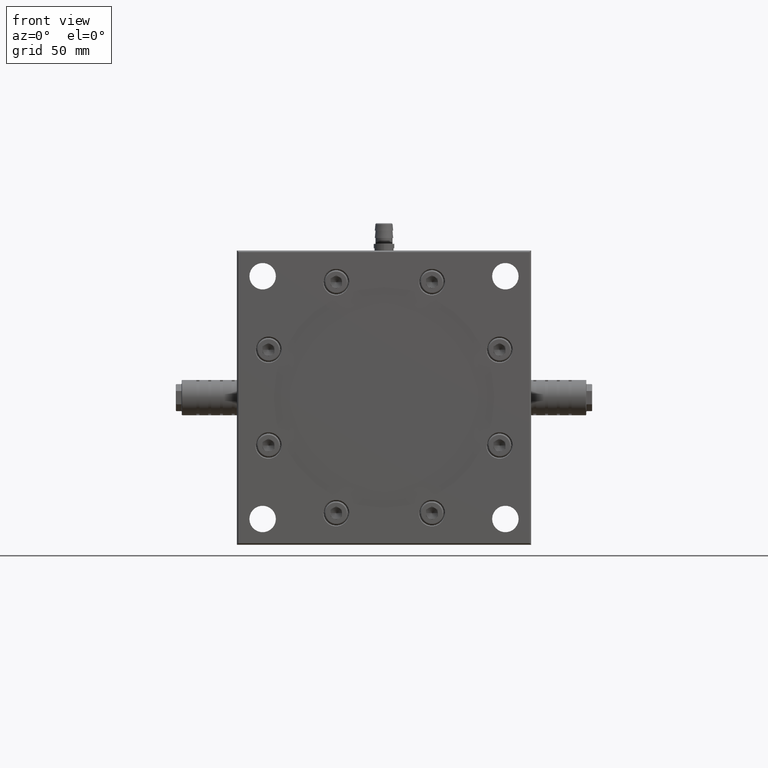
[diagram: clean part render]
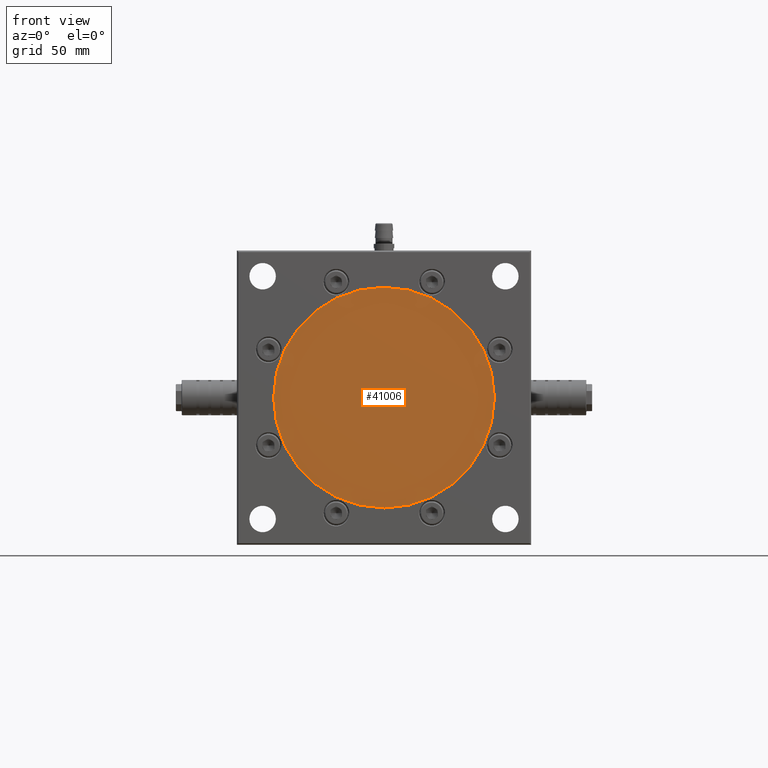
[diagram: same view with one face highlighted and labeled with its STEP entity id]
A machine part, front view. The second image highlights one B-rep face of the part: STEP entity #41006.
In plain terms, the highlighted planar face has unit normal (0, -1, 0).
Its self-contained STEP definition (entity closure, byte-faithful):
#948 = FACE_OUTER_BOUND ( 'NONE', #10303, .T. ) ;
#1968 = CARTESIAN_POINT ( 'NONE',  ( -2.300880297921580200E-017, 1.000000000000000000, 0.0000000000000000000 ) ) ;
#5641 = VERTEX_POINT ( 'NONE', #41977 ) ;
#5657 = DIRECTION ( 'NONE',  ( -1.000000000000000000, 0.0000000000000000000, 6.401752586476379100E-022 ) ) ;
#7123 = DIRECTION ( 'NONE',  ( -1.000000000000000000, 0.0000000000000000000, 6.401752586476379100E-022 ) ) ;
#8384 = CARTESIAN_POINT ( 'NONE',  ( -75.00000000000000000, 1.000000000000000000, 4.801314439857284000E-020 ) ) ;
#10303 = EDGE_LOOP ( 'NONE', ( #35405, #42321 ) ) ;
#13420 = CARTESIAN_POINT ( 'NONE',  ( -2.300880297921580200E-017, 1.000000000000000000, 0.0000000000000000000 ) ) ;
#15828 = VERTEX_POINT ( 'NONE', #8384 ) ;
#15913 = AXIS2_PLACEMENT_3D ( 'NONE', #1968, #41359, #33735 ) ;
#17204 = PLANE ( 'NONE',  #15913 ) ;
#19362 = DIRECTION ( 'NONE',  ( 2.300880297921579900E-017, -1.000000000000000000, 0.0000000000000000000 ) ) ;
#21593 = AXIS2_PLACEMENT_3D ( 'NONE', #42851, #19362, #7123 ) ;
#29324 = DIRECTION ( 'NONE',  ( 2.300880297921579900E-017, -1.000000000000000000, 0.0000000000000000000 ) ) ;
#33735 = DIRECTION ( 'NONE',  ( -1.000000000000000000, -8.946783215029080500E-019, 6.401752586476379100E-022 ) ) ;
#33829 = AXIS2_PLACEMENT_3D ( 'NONE', #13420, #29324, #5657 ) ;
#35405 = ORIENTED_EDGE ( 'NONE', *, *, #36717, .T. ) ;
#36717 = EDGE_CURVE ( 'NONE', #15828, #5641, #37477, .T. ) ;
#37477 = CIRCLE ( 'NONE', #33829, 75.00000000000000000 ) ;
#39693 = CIRCLE ( 'NONE', #21593, 75.00000000000000000 ) ;
#41006 = ADVANCED_FACE ( 'NONE', ( #948 ), #17204, .T. ) ;
#41359 = DIRECTION ( 'NONE',  ( 8.946783215029080500E-019, -1.000000000000000000, 1.415691547251745500E-038 ) ) ;
#41977 = CARTESIAN_POINT ( 'NONE',  ( 75.00000000000000000, 1.000000000000001800, -9.184899006749547500E-015 ) ) ;
#42321 = ORIENTED_EDGE ( 'NONE', *, *, #43109, .T. ) ;
#42851 = CARTESIAN_POINT ( 'NONE',  ( -2.300880297921580200E-017, 1.000000000000000000, 0.0000000000000000000 ) ) ;
#43109 = EDGE_CURVE ( 'NONE', #5641, #15828, #39693, .T. ) ;